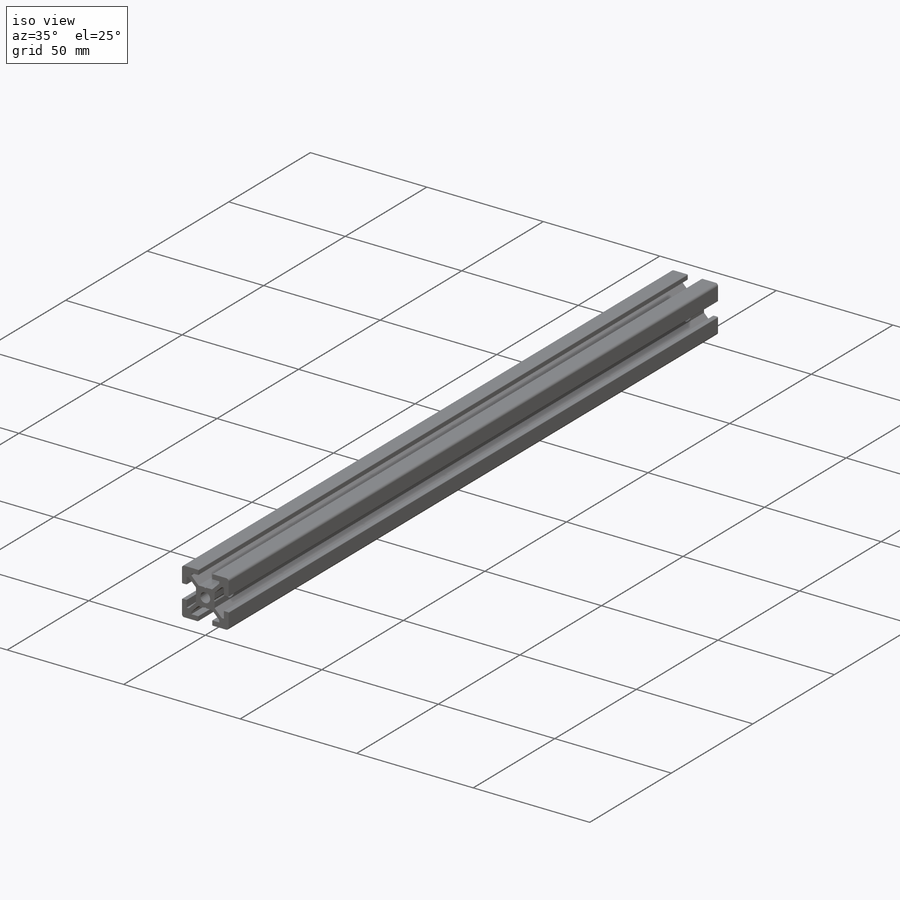
[diagram: iso view]
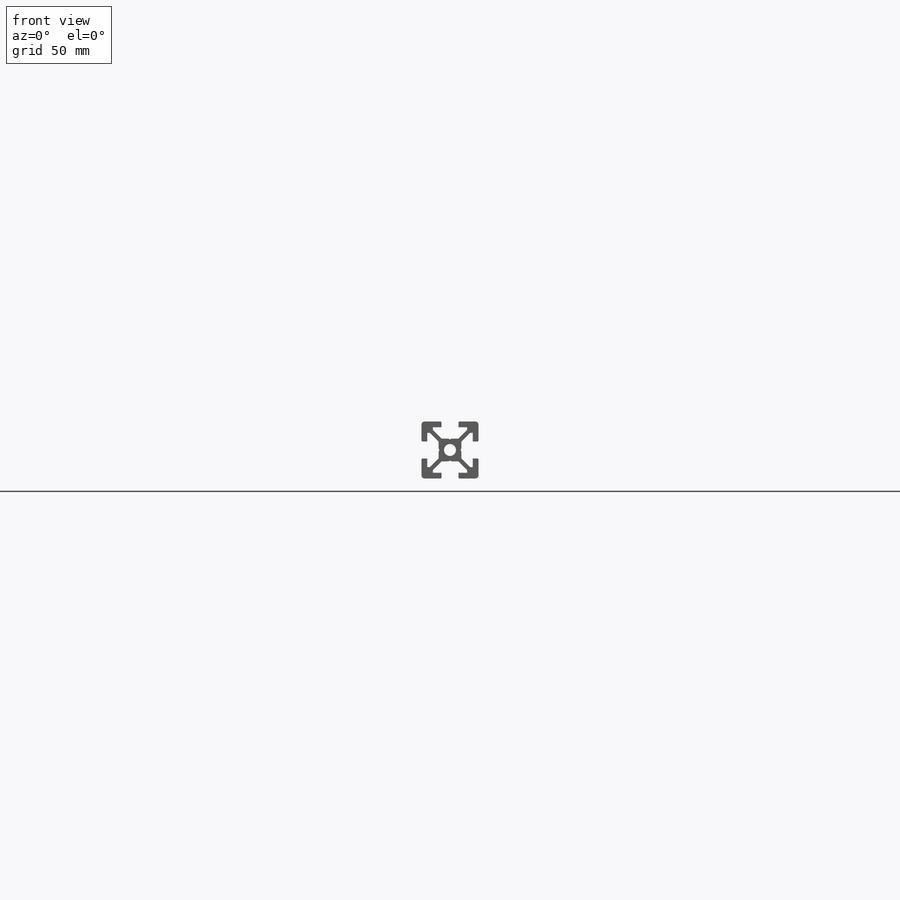
[diagram: front view]
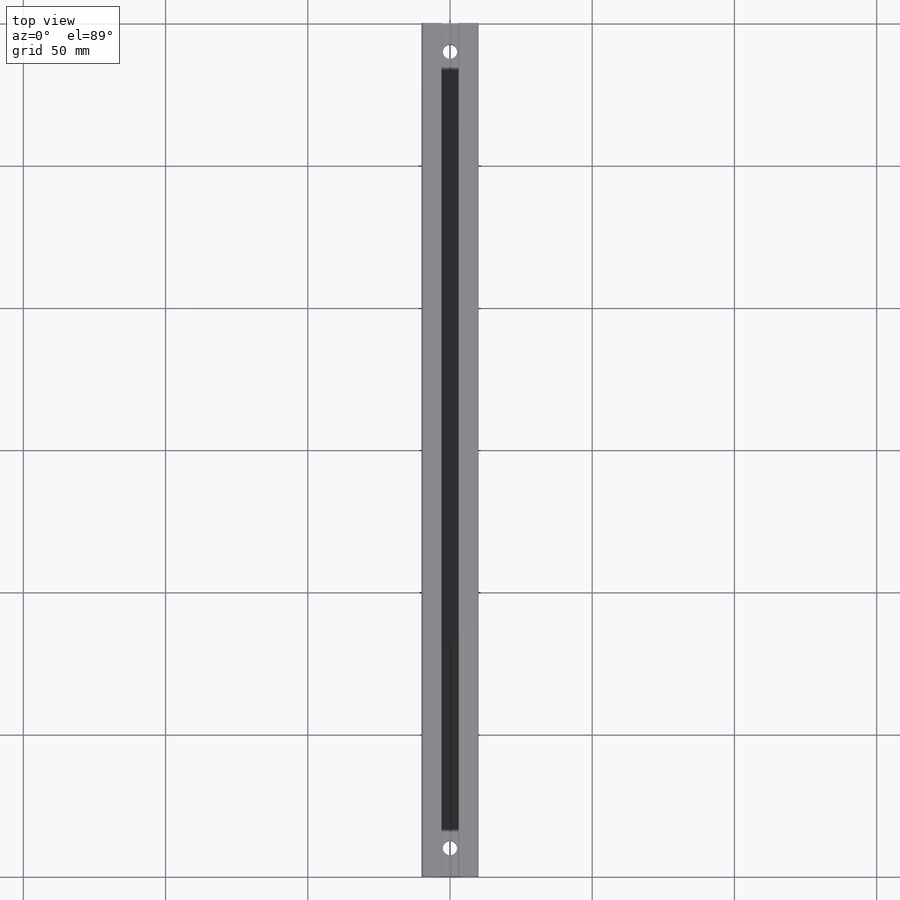
[diagram: top view]
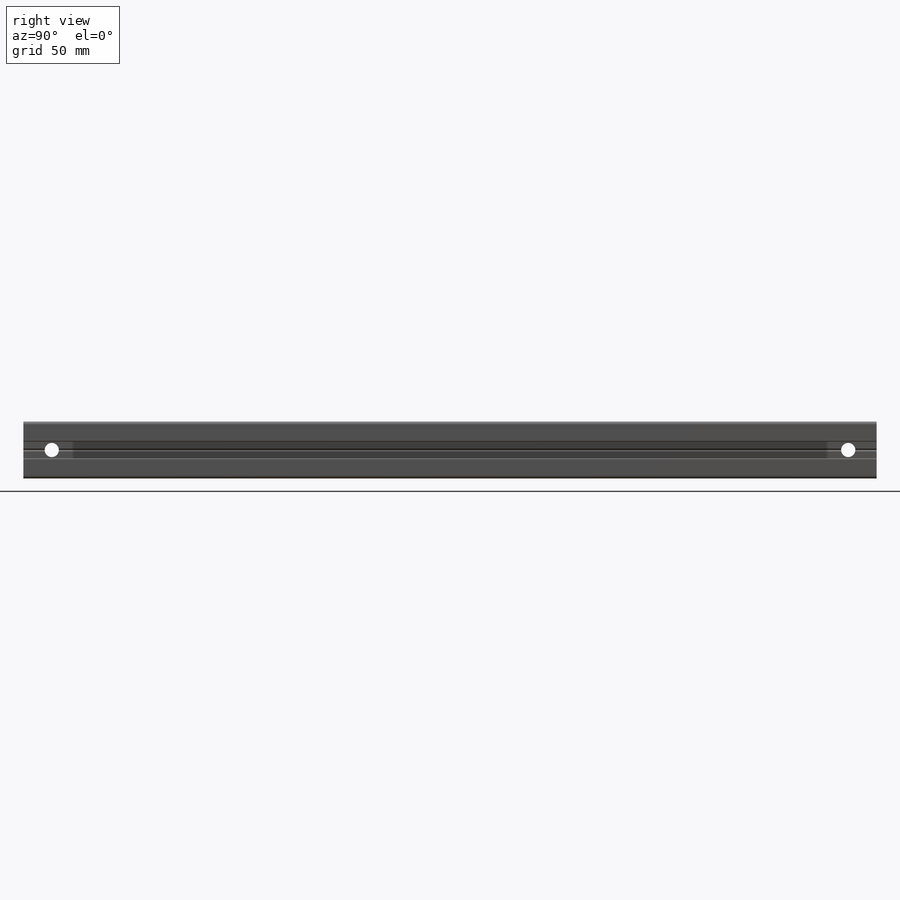
[diagram: right view]
SOLIDWORKS PART (.sldprt)
format: sldprt  version: not decoded by parser v0  size: 390,144 bytes
history: native  units: mm
features: sketch x5, plane x3, cut_extrude x3, material x1, extrude x1, cut_revolve x1 (+13 scaffold rows collapsed)
feature tree (27):
  scaffold x13  (default folders/planes/origin — collapsed)
  material  "6063-T5"
  plane  "Plane1"
  sketch  "Sketch1"
  extrude  "Boss-Extrude1"  Depth=300mm
  plane  "Plane2"
  sketch  "Sketch2"  dims[D1=2.1mm D2=330.0mm]
  cut_revolve  "Cut-Revolve1"  Angle=360deg
  plane  "Plane3"
  sketch  "Sketch4"  dims[D1=5.0mm D2=10.0mm]
  cut_extrude  "Cut-Extrude1"  [1 undecoded]
  sketch  "Sketch5"  dims[D1=5.0mm D2=10.0mm]
  cut_extrude  "Cut-Extrude2"  [1 undecoded]
  sketch  "Sketch6"  dims[D1=5.0mm]
  cut_extrude  "Cut-Extrude3"  [1 undecoded]
decode coverage: 6 of 10 modeling features carry decoded parameters
note: 3 parameter values undecoded
summary: no parameter record found for 3 features
note: suppression state not decoded; provenance and decode notes live in map.json
